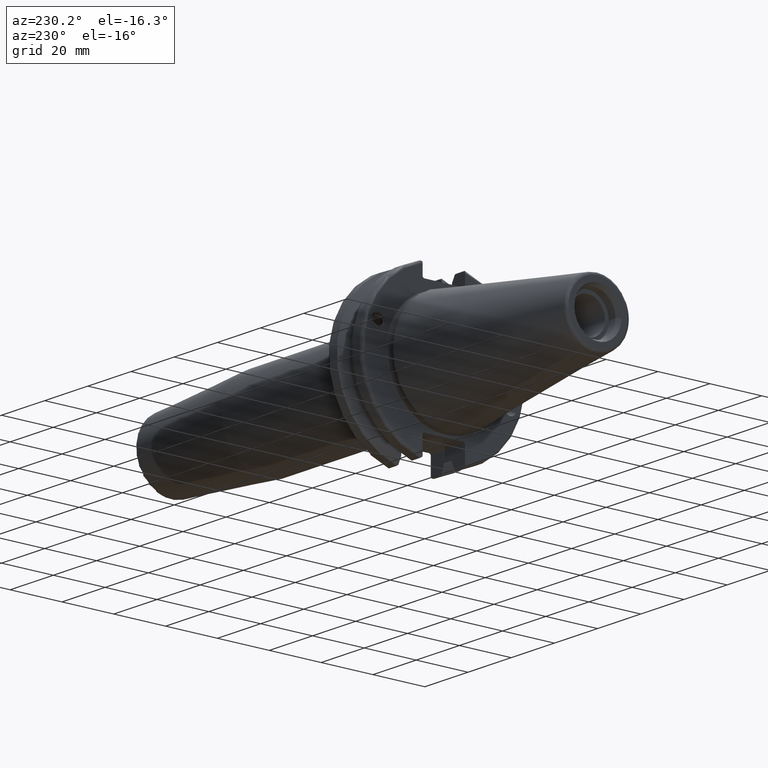
[diagram: clean part render]
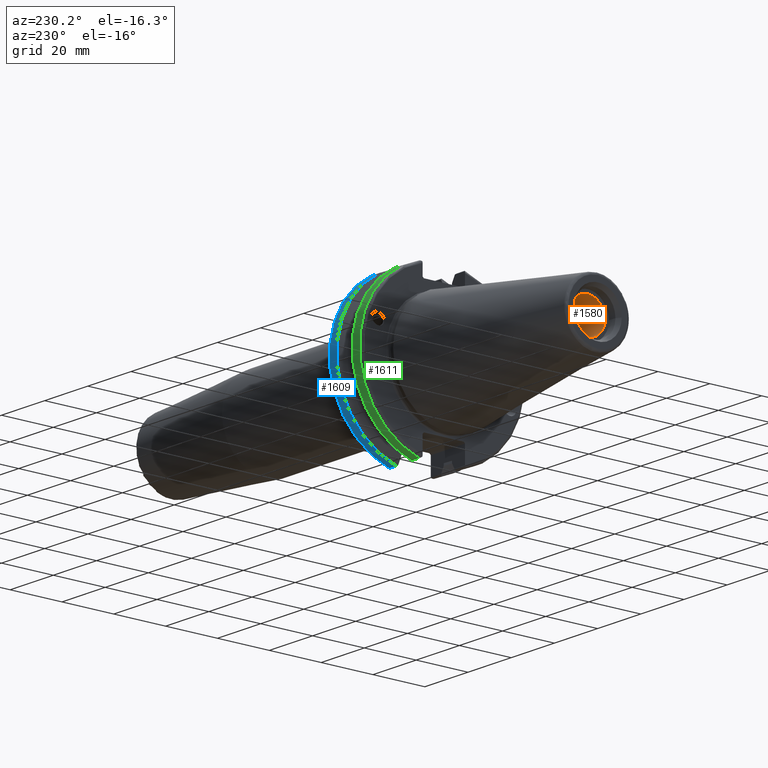
[diagram: same view with three faces highlighted in distinct colors, each labeled with its STEP entity id]
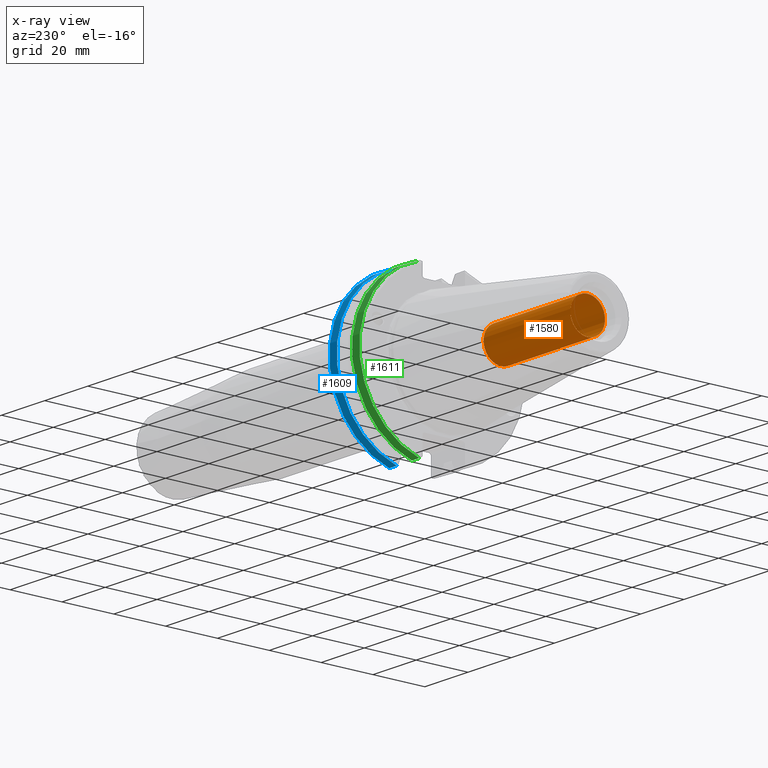
[diagram: x-ray of the same camera — body ghosted, the three highlighted faces saturated]
A machine part, auxiliary view with three faces highlighted in distinct colors.
The next image is the same camera in x-ray (body ghosted, the three faces saturated) — at least one of them is partly hidden behind the body in this view.
Their STEP definitions:

[orange] entity #1580 — the highlighted cylindrical surface (bore or boss wall) has radius 6.6929 mm, axis along (-1, 0, 0).
#165=CYLINDRICAL_SURFACE('',#1759,6.6929);
#219=FACE_OUTER_BOUND('',#322,.T.);
#322=EDGE_LOOP('',(#1273,#1274,#1275,#1276));
#425=LINE('',#2786,#523);
#523=VECTOR('',#2110,6.6929);
#615=CIRCLE('',#1758,6.6929);
#616=CIRCLE('',#1760,6.6929);
#746=VERTEX_POINT('',#2780);
#747=VERTEX_POINT('',#2784);
#939=EDGE_CURVE('',#746,#746,#615,.T.);
#941=EDGE_CURVE('',#747,#747,#616,.T.);
#942=EDGE_CURVE('',#747,#746,#425,.T.);
#1273=ORIENTED_EDGE('',*,*,#941,.F.);
#1274=ORIENTED_EDGE('',*,*,#942,.T.);
#1275=ORIENTED_EDGE('',*,*,#939,.F.);
#1276=ORIENTED_EDGE('',*,*,#942,.F.);
#1580=ADVANCED_FACE('',(#219),#165,.F.);
#1758=AXIS2_PLACEMENT_3D('',#2781,#2103,#2104);
#1759=AXIS2_PLACEMENT_3D('',#2783,#2106,#2107);
#1760=AXIS2_PLACEMENT_3D('',#2785,#2108,#2109);
#2103=DIRECTION('center_axis',(-1.,0.,0.));
#2104=DIRECTION('ref_axis',(0.,0.,1.));
#2106=DIRECTION('center_axis',(-1.,0.,0.));
#2107=DIRECTION('ref_axis',(0.,0.,1.));
#2108=DIRECTION('center_axis',(1.,0.,0.));
#2109=DIRECTION('ref_axis',(0.,0.,1.));
#2110=DIRECTION('',(1.,0.,0.));
#2780=CARTESIAN_POINT('',(-23.25,-8.19643856201332E-16,-6.6929));
#2781=CARTESIAN_POINT('Origin',(-23.25,0.,0.));
#2783=CARTESIAN_POINT('Origin',(-45.75,0.,0.));
#2784=CARTESIAN_POINT('',(-63.45,8.19643856201332E-16,-6.6929));
#2785=CARTESIAN_POINT('Origin',(-63.45,0.,0.));
#2786=CARTESIAN_POINT('',(-45.75,-8.19643856201332E-16,-6.6929));

[blue] entity #1609 — the highlighted cylindrical surface (partial cylindrical patch) has radius 31.75 mm, axis along (1, 0, 0).
#169=CYLINDRICAL_SURFACE('',#1807,31.75);
#248=FACE_OUTER_BOUND('',#355,.T.);
#355=EDGE_LOOP('',(#1442,#1443,#1444,#1445));
#438=LINE('',#2865,#536);
#466=LINE('',#3057,#564);
#536=VECTOR('',#2149,10.);
#564=VECTOR('',#2243,10.);
#624=CIRCLE('',#1772,31.75);
#635=CIRCLE('',#1808,31.75);
#766=VERTEX_POINT('',#2839);
#767=VERTEX_POINT('',#2848);
#769=VERTEX_POINT('',#2861);
#798=VERTEX_POINT('',#3056);
#964=EDGE_CURVE('',#766,#767,#624,.T.);
#968=EDGE_CURVE('',#769,#766,#438,.T.);
#1024=EDGE_CURVE('',#767,#798,#466,.T.);
#1026=EDGE_CURVE('',#769,#798,#635,.T.);
#1442=ORIENTED_EDGE('',*,*,#964,.F.);
#1443=ORIENTED_EDGE('',*,*,#968,.F.);
#1444=ORIENTED_EDGE('',*,*,#1026,.T.);
#1445=ORIENTED_EDGE('',*,*,#1024,.F.);
#1609=ADVANCED_FACE('',(#248),#169,.T.);
#1772=AXIS2_PLACEMENT_3D('',#2849,#2144,#2145);
#1807=AXIS2_PLACEMENT_3D('',#3061,#2244,#2245);
#1808=AXIS2_PLACEMENT_3D('',#3062,#2246,#2247);
#2144=DIRECTION('center_axis',(1.,0.,0.));
#2145=DIRECTION('ref_axis',(0.,1.,-6.12323399573677E-17));
#2149=DIRECTION('',(1.,0.,0.));
#2243=DIRECTION('',(-1.,0.,0.));
#2244=DIRECTION('center_axis',(1.,0.,0.));
#2245=DIRECTION('ref_axis',(0.,1.,0.));
#2246=DIRECTION('center_axis',(1.,0.,0.));
#2247=DIRECTION('ref_axis',(0.,0.,-1.));
#2839=CARTESIAN_POINT('',(18.05,8.67204822802685,-30.5427254764662));
#2848=CARTESIAN_POINT('',(18.05,8.67204822802685,30.5427254764662));
#2849=CARTESIAN_POINT('Origin',(18.05,0.,0.));
#2861=CARTESIAN_POINT('',(14.6602667690756,8.67204822802685,-30.5427254764662));
#2865=CARTESIAN_POINT('',(16.8551333845378,8.67204822802685,-30.5427254764662));
#3056=CARTESIAN_POINT('',(14.6602667690756,8.67204822802685,30.5427254764662));
#3057=CARTESIAN_POINT('',(16.8551333845378,8.67204822802685,30.5427254764662));
#3061=CARTESIAN_POINT('Origin',(16.8551333845378,0.,0.));
#3062=CARTESIAN_POINT('Origin',(14.6602667690756,0.,0.));

[green] entity #1611 — the highlighted cylindrical surface (partial cylindrical patch) has radius 31.75 mm, axis along (1, 0, 0).
#170=CYLINDRICAL_SURFACE('',#1810,31.75);
#250=FACE_OUTER_BOUND('',#357,.T.);
#357=EDGE_LOOP('',(#1450,#1451,#1452,#1453));
#452=LINE('',#3011,#550);
#467=LINE('',#3064,#565);
#550=VECTOR('',#2191,10.);
#565=VECTOR('',#2250,10.);
#608=CIRCLE('',#1742,31.75);
#628=CIRCLE('',#1786,31.75);
#735=VERTEX_POINT('',#2738);
#736=VERTEX_POINT('',#2742);
#787=VERTEX_POINT('',#2985);
#788=VERTEX_POINT('',#2994);
#923=EDGE_CURVE('',#735,#736,#608,.T.);
#1000=EDGE_CURVE('',#787,#788,#628,.T.);
#1003=EDGE_CURVE('',#788,#735,#452,.T.);
#1027=EDGE_CURVE('',#736,#787,#467,.T.);
#1450=ORIENTED_EDGE('',*,*,#1000,.F.);
#1451=ORIENTED_EDGE('',*,*,#1027,.F.);
#1452=ORIENTED_EDGE('',*,*,#923,.F.);
#1453=ORIENTED_EDGE('',*,*,#1003,.F.);
#1611=ADVANCED_FACE('',(#250),#170,.T.);
#1742=AXIS2_PLACEMENT_3D('',#2743,#2065,#2066);
#1786=AXIS2_PLACEMENT_3D('',#2995,#2187,#2188);
#1810=AXIS2_PLACEMENT_3D('',#3065,#2251,#2252);
#2065=DIRECTION('center_axis',(1.,0.,0.));
#2066=DIRECTION('ref_axis',(0.,0.,-1.));
#2187=DIRECTION('center_axis',(-1.,0.,0.));
#2188=DIRECTION('ref_axis',(0.,1.,1.60812264967664E-16));
#2191=DIRECTION('',(1.,0.,0.));
#2250=DIRECTION('',(-1.,0.,0.));
#2251=DIRECTION('center_axis',(1.,0.,0.));
#2252=DIRECTION('ref_axis',(0.,1.,0.));
#2738=CARTESIAN_POINT('',(7.60793323092436,8.67204822802685,-30.5427254764662));
#2742=CARTESIAN_POINT('',(7.60793323092436,8.67204822802685,30.5427254764662));
#2743=CARTESIAN_POINT('Origin',(7.60793323092436,0.,0.));
#2985=CARTESIAN_POINT('',(4.175,8.67204822802685,30.5427254764662));
#2994=CARTESIAN_POINT('',(4.175,8.67204822802685,-30.5427254764662));
#2995=CARTESIAN_POINT('Origin',(4.175,0.,0.));
#3011=CARTESIAN_POINT('',(5.39146661546218,8.67204822802685,-30.5427254764662));
#3064=CARTESIAN_POINT('',(5.39146661546218,8.67204822802685,30.5427254764662));
#3065=CARTESIAN_POINT('Origin',(5.39146661546218,0.,0.));